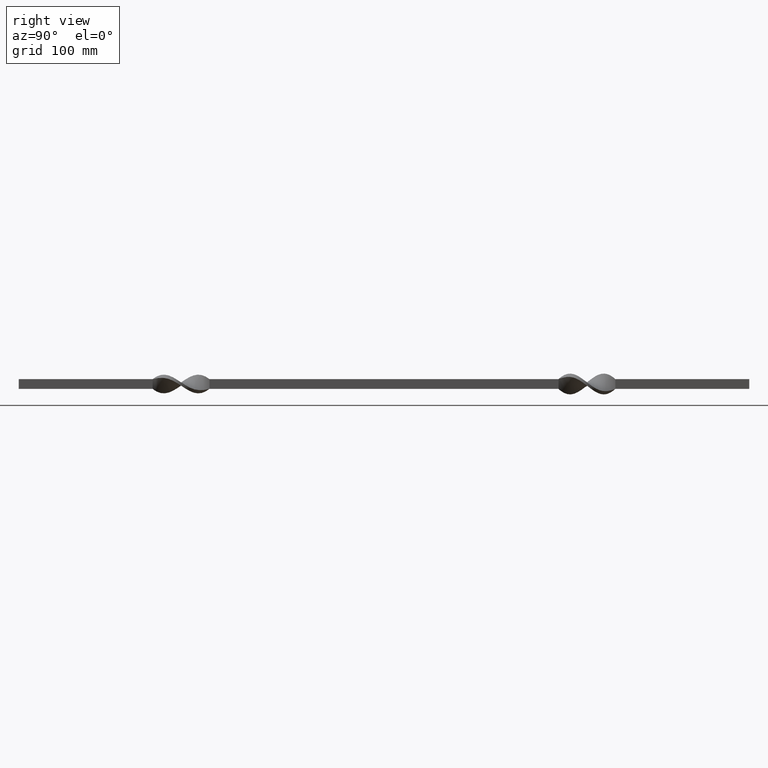
[diagram: clean part render]
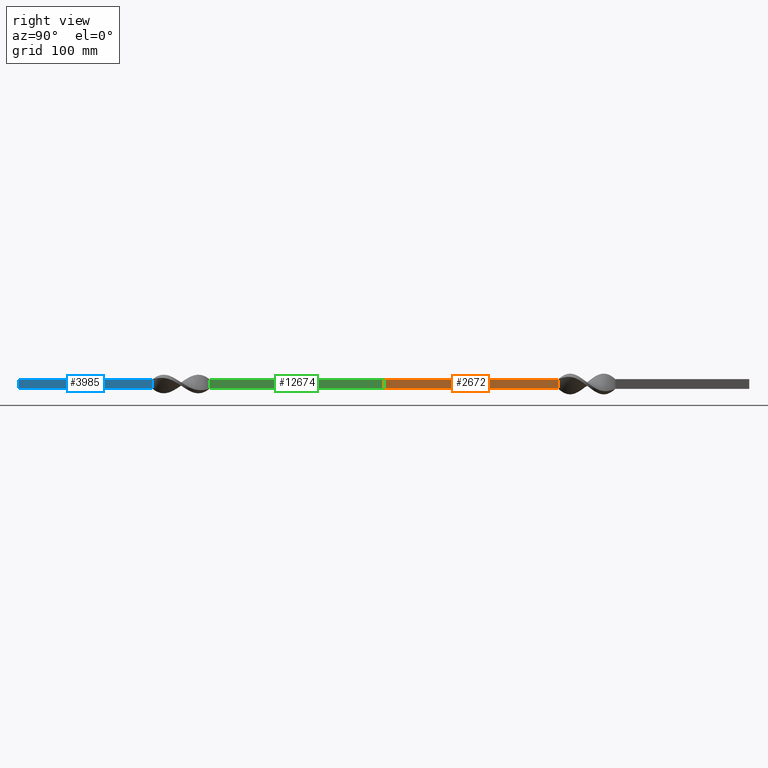
[diagram: same view with three faces highlighted in distinct colors, each labeled with its STEP entity id]
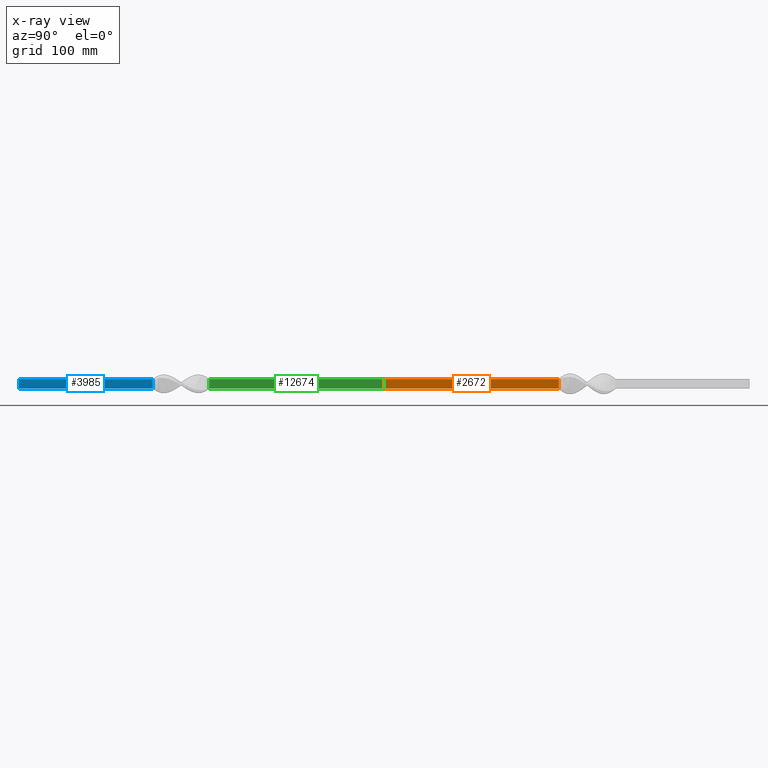
[diagram: x-ray of the same camera — body ghosted, the three highlighted faces saturated]
A machine part, right view with three faces highlighted in distinct colors.
The next image is the same camera in x-ray (body ghosted, the three faces saturated) — at least one of them is partly hidden behind the body in this view.
Their STEP definitions:

[orange] entity #2672 — the highlighted planar face has unit normal (-1, 0, 0).
#449 = DIRECTION ( 'NONE',  ( -0.9999999999971636022, 0.000000000000000000, 2.381788383237899479E-06 ) ) ;
#690 = DIRECTION ( 'NONE',  ( -2.381548938525795966E-06, -0.000000000000000000, -0.9999999999971640463 ) ) ;
#1023 = EDGE_CURVE ( 'NONE', #8406, #10769, #7530, .T. ) ;
#1195 = EDGE_LOOP ( 'NONE', ( #7896, #11803, #9666, #8488 ) ) ;
#1556 = CARTESIAN_POINT ( 'NONE',  ( 6.000007144717526053, 0.000000000000000000, 5.999992857305958438 ) ) ;
#2084 = VECTOR ( 'NONE', #9153, 1000.000000000000000 ) ;
#2672 = ADVANCED_FACE ( 'NONE', ( #11216 ), #3452, .F. ) ;
#3432 = CARTESIAN_POINT ( 'NONE',  ( 6.000014289435020132, 214.9999999999999716, 5.999985714611950627 ) ) ;
#3452 = PLANE ( 'NONE',  #12319 ) ;
#3538 = DIRECTION ( 'NONE',  ( 2.381788383237899056E-06, 0.000000000000000000, 0.9999999999971634912 ) ) ;
#4297 = LINE ( 'NONE', #11658, #9344 ) ;
#4727 = LINE ( 'NONE', #6927, #11459 ) ;
#4757 = LINE ( 'NONE', #12919, #2084 ) ;
#5811 = VERTEX_POINT ( 'NONE', #3432 ) ;
#6641 = CARTESIAN_POINT ( 'NONE',  ( 5.999995235127936866, 6.938893903907228378E-15, -2.000014292528954574 ) ) ;
#6907 = VERTEX_POINT ( 'NONE', #12100 ) ;
#6927 = CARTESIAN_POINT ( 'NONE',  ( 6.000014289435020132, -16.97060317452753253, 5.999985714611950627 ) ) ;
#7311 = CARTESIAN_POINT ( 'NONE',  ( 6.000007144717526053, 0.000000000000000000, 5.999992857305958438 ) ) ;
#7530 = B_SPLINE_CURVE_WITH_KNOTS ( 'NONE', 3,
 ( #1556, #9767, #6641, #7729 ),
 .UNSPECIFIED., .F., .F.,
 ( 4, 4 ),
 ( 0.000000000000000000, 1.000000000000000000 ),
 .UNSPECIFIED. ) ;
#7652 = EDGE_CURVE ( 'NONE', #5811, #6907, #4297, .T. ) ;
#7729 = CARTESIAN_POINT ( 'NONE',  ( 5.999992853987182073, 0.000000000000000000, -6.000007148049721906 ) ) ;
#7896 = ORIENTED_EDGE ( 'NONE', *, *, #10273, .F. ) ;
#8126 = DIRECTION ( 'NONE',  ( -0.000000000000000000, 1.000000000000000000, -0.000000000000000000 ) ) ;
#8406 = VERTEX_POINT ( 'NONE', #7311 ) ;
#8488 = ORIENTED_EDGE ( 'NONE', *, *, #7652, .F. ) ;
#8542 = CARTESIAN_POINT ( 'NONE',  ( 5.999985707974395233, -16.97060317452753253, -6.000014296099408284 ) ) ;
#8844 = CARTESIAN_POINT ( 'NONE',  ( 5.999992853987182073, 0.000000000000000000, -6.000007148049721906 ) ) ;
#8853 = EDGE_CURVE ( 'NONE', #10769, #6907, #4757, .T. ) ;
#9153 = DIRECTION ( 'NONE',  ( -0.000000000000000000, 1.000000000000000000, -0.000000000000000000 ) ) ;
#9344 = VECTOR ( 'NONE', #690, 1000.000000000000227 ) ;
#9666 = ORIENTED_EDGE ( 'NONE', *, *, #8853, .T. ) ;
#9767 = CARTESIAN_POINT ( 'NONE',  ( 6.000004762281478499, 6.938893903907228378E-15, 1.999985711041500025 ) ) ;
#10273 = EDGE_CURVE ( 'NONE', #8406, #5811, #4727, .T. ) ;
#10769 = VERTEX_POINT ( 'NONE', #8844 ) ;
#11216 = FACE_OUTER_BOUND ( 'NONE', #1195, .T. ) ;
#11459 = VECTOR ( 'NONE', #8126, 1000.000000000000000 ) ;
#11658 = CARTESIAN_POINT ( 'NONE',  ( 5.999985710689301754, 214.9999999999999716, -6.000014289276662360 ) ) ;
#11803 = ORIENTED_EDGE ( 'NONE', *, *, #1023, .T. ) ;
#12100 = CARTESIAN_POINT ( 'NONE',  ( 5.999985707974395233, 214.9999999999999716, -6.000014296099408284 ) ) ;
#12319 = AXIS2_PLACEMENT_3D ( 'NONE', #8542, #449, #3538 ) ;
#12919 = CARTESIAN_POINT ( 'NONE',  ( 5.999985707974395233, -16.97060317452753253, -6.000014296099408284 ) ) ;

[blue] entity #3985 — the highlighted planar face has unit normal (-1, -0, 0).
#23 = CARTESIAN_POINT ( 'NONE',  ( 5.999999997102611005, -450.0000000000000568, -6.000000004527533903 ) ) ;
#155 = ORIENTED_EDGE ( 'NONE', *, *, #9814, .T. ) ;
#185 = CARTESIAN_POINT ( 'NONE',  ( 6.000000000180522264, -450.0000000000000568, 6.000000000984897497 ) ) ;
#348 = DIRECTION ( 'NONE',  ( -1.000000000000000000, -2.202882638334863015E-16, 2.564925990328642659E-10 ) ) ;
#636 = CARTESIAN_POINT ( 'NONE',  ( 6.000000000180522264, -450.0000000000000568, 6.000000000984897497 ) ) ;
#1222 = LINE ( 'NONE', #636, #1390 ) ;
#1390 = VECTOR ( 'NONE', #2355, 1000.000000000000000 ) ;
#2153 = ORIENTED_EDGE ( 'NONE', *, *, #9199, .F. ) ;
#2355 = DIRECTION ( 'NONE',  ( -2.202882637596677301E-16, 1.000000000000000000, 2.877999229000130997E-16 ) ) ;
#3135 = CARTESIAN_POINT ( 'NONE',  ( 6.000000000180485848, -285.0000000000000568, 6.000000000984944570 ) ) ;
#3361 = ORIENTED_EDGE ( 'NONE', *, *, #5509, .F. ) ;
#3985 = ADVANCED_FACE ( 'NONE', ( #10191 ), #8575, .F. ) ;
#4943 = CARTESIAN_POINT ( 'NONE',  ( 5.999999997102611005, -450.0000000000000568, -6.000000004527533903 ) ) ;
#5082 = EDGE_LOOP ( 'NONE', ( #155, #3361, #5526, #2153 ) ) ;
#5509 = EDGE_CURVE ( 'NONE', #5602, #11123, #7513, .T. ) ;
#5513 = CARTESIAN_POINT ( 'NONE',  ( 5.999999997102574589, -285.0000000000000568, -6.000000004527485942 ) ) ;
#5526 = ORIENTED_EDGE ( 'NONE', *, *, #12092, .F. ) ;
#5602 = VERTEX_POINT ( 'NONE', #3135 ) ;
#6479 = VECTOR ( 'NONE', #9975, 1000.000000000000000 ) ;
#6949 = DIRECTION ( 'NONE',  ( 2.564925990328642659E-10, 0.000000000000000000, 1.000000000000000000 ) ) ;
#7513 = LINE ( 'NONE', #7985, #9082 ) ;
#7983 = VERTEX_POINT ( 'NONE', #8511 ) ;
#7985 = CARTESIAN_POINT ( 'NONE',  ( 6.000000000000062172, -285.0000000000000568, -7.306449865939664226E-14 ) ) ;
#8511 = CARTESIAN_POINT ( 'NONE',  ( 5.999999997102611005, -450.0000000000000568, -6.000000004527533903 ) ) ;
#8545 = LINE ( 'NONE', #4943, #11165 ) ;
#8575 = PLANE ( 'NONE',  #12339 ) ;
#8978 = DIRECTION ( 'NONE',  ( 1.493079894517851385E-15, 2.877999229000134448E-16, -1.000000000000000000 ) ) ;
#9082 = VECTOR ( 'NONE', #8978, 1000.000000000000000 ) ;
#9162 = LINE ( 'NONE', #23, #6479 ) ;
#9199 = EDGE_CURVE ( 'NONE', #7983, #12947, #8545, .T. ) ;
#9575 = CARTESIAN_POINT ( 'NONE',  ( 5.999999997102611005, -450.0000000000000568, -6.000000004527533903 ) ) ;
#9814 = EDGE_CURVE ( 'NONE', #7983, #11123, #9162, .T. ) ;
#9975 = DIRECTION ( 'NONE',  ( -2.202882637596677301E-16, 1.000000000000000000, 2.877999229000130997E-16 ) ) ;
#10191 = FACE_OUTER_BOUND ( 'NONE', #5082, .T. ) ;
#10474 = DIRECTION ( 'NONE',  ( 2.564925990328642659E-10, 0.000000000000000000, 1.000000000000000000 ) ) ;
#11123 = VERTEX_POINT ( 'NONE', #5513 ) ;
#11165 = VECTOR ( 'NONE', #6949, 1000.000000000000000 ) ;
#12092 = EDGE_CURVE ( 'NONE', #12947, #5602, #1222, .T. ) ;
#12339 = AXIS2_PLACEMENT_3D ( 'NONE', #9575, #348, #10474 ) ;
#12947 = VERTEX_POINT ( 'NONE', #185 ) ;

[green] entity #12674 — the highlighted planar face has unit normal (-1, -0, 0).
#233 = EDGE_CURVE ( 'NONE', #3156, #12260, #8181, .T. ) ;
#266 = ORIENTED_EDGE ( 'NONE', *, *, #1579, .T. ) ;
#655 = CARTESIAN_POINT ( 'NONE',  ( 6.000000000000031086, -215.0000000000000000, -5.999999999999987566 ) ) ;
#1023 = EDGE_CURVE ( 'NONE', #8406, #10769, #7530, .T. ) ;
#1265 = EDGE_CURVE ( 'NONE', #10769, #12260, #5598, .T. ) ;
#1456 = DIRECTION ( 'NONE',  ( 5.204170427930421283E-15, 0.000000000000000000, 1.000000000000000000 ) ) ;
#1556 = CARTESIAN_POINT ( 'NONE',  ( 6.000007144717526053, 0.000000000000000000, 5.999992857305958438 ) ) ;
#1579 = EDGE_CURVE ( 'NONE', #8406, #3156, #9377, .T. ) ;
#1849 = ORIENTED_EDGE ( 'NONE', *, *, #1265, .F. ) ;
#2092 = CARTESIAN_POINT ( 'NONE',  ( 6.000000000000094147, -215.0000000000000000, 6.000000000000013323 ) ) ;
#2578 = PLANE ( 'NONE',  #9041 ) ;
#3156 = VERTEX_POINT ( 'NONE', #8054 ) ;
#5452 = VECTOR ( 'NONE', #8282, 1000.000000000000000 ) ;
#5598 = LINE ( 'NONE', #13034, #8932 ) ;
#6141 = FACE_OUTER_BOUND ( 'NONE', #7249, .T. ) ;
#6641 = CARTESIAN_POINT ( 'NONE',  ( 5.999995235127936866, 6.938893903907228378E-15, -2.000014292528954574 ) ) ;
#7249 = EDGE_LOOP ( 'NONE', ( #9094, #1849, #12450, #266 ) ) ;
#7311 = CARTESIAN_POINT ( 'NONE',  ( 6.000007144717526053, 0.000000000000000000, 5.999992857305958438 ) ) ;
#7530 = B_SPLINE_CURVE_WITH_KNOTS ( 'NONE', 3,
 ( #1556, #9767, #6641, #7729 ),
 .UNSPECIFIED., .F., .F.,
 ( 4, 4 ),
 ( 0.000000000000000000, 1.000000000000000000 ),
 .UNSPECIFIED. ) ;
#7729 = CARTESIAN_POINT ( 'NONE',  ( 5.999992853987182073, 0.000000000000000000, -6.000007148049721906 ) ) ;
#8054 = CARTESIAN_POINT ( 'NONE',  ( 6.000000000000094147, -215.0000000000000000, 6.000000000000013323 ) ) ;
#8169 = DIRECTION ( 'NONE',  ( 2.877999229000143816E-16, -1.000000000000000000, 2.202882637596671631E-16 ) ) ;
#8181 = LINE ( 'NONE', #2092, #5452 ) ;
#8282 = DIRECTION ( 'NONE',  ( -5.204170427930421283E-15, 0.000000000000000000, -1.000000000000000000 ) ) ;
#8406 = VERTEX_POINT ( 'NONE', #7311 ) ;
#8844 = CARTESIAN_POINT ( 'NONE',  ( 5.999992853987182073, 0.000000000000000000, -6.000007148049721906 ) ) ;
#8932 = VECTOR ( 'NONE', #8169, 1000.000000000000000 ) ;
#8973 = CARTESIAN_POINT ( 'NONE',  ( 6.000000000000031974, 0.000000000000000000, 5.999999999999965361 ) ) ;
#9041 = AXIS2_PLACEMENT_3D ( 'NONE', #9585, #12659, #1456 ) ;
#9053 = DIRECTION ( 'NONE',  ( 2.877999229000143816E-16, -1.000000000000000000, 2.202882637596671631E-16 ) ) ;
#9094 = ORIENTED_EDGE ( 'NONE', *, *, #233, .T. ) ;
#9377 = LINE ( 'NONE', #8973, #12971 ) ;
#9585 = CARTESIAN_POINT ( 'NONE',  ( 6.000000000000031974, 0.000000000000000000, 5.999999999999965361 ) ) ;
#9767 = CARTESIAN_POINT ( 'NONE',  ( 6.000004762281478499, 6.938893903907228378E-15, 1.999985711041500025 ) ) ;
#10769 = VERTEX_POINT ( 'NONE', #8844 ) ;
#12260 = VERTEX_POINT ( 'NONE', #655 ) ;
#12450 = ORIENTED_EDGE ( 'NONE', *, *, #1023, .F. ) ;
#12659 = DIRECTION ( 'NONE',  ( -1.000000000000000000, -2.877999229000132476E-16, 5.204170427930421283E-15 ) ) ;
#12674 = ADVANCED_FACE ( 'NONE', ( #6141 ), #2578, .F. ) ;
#12971 = VECTOR ( 'NONE', #9053, 1000.000000000000000 ) ;
#13034 = CARTESIAN_POINT ( 'NONE',  ( 5.999999999999969802, 0.000000000000000000, -6.000000000000035527 ) ) ;